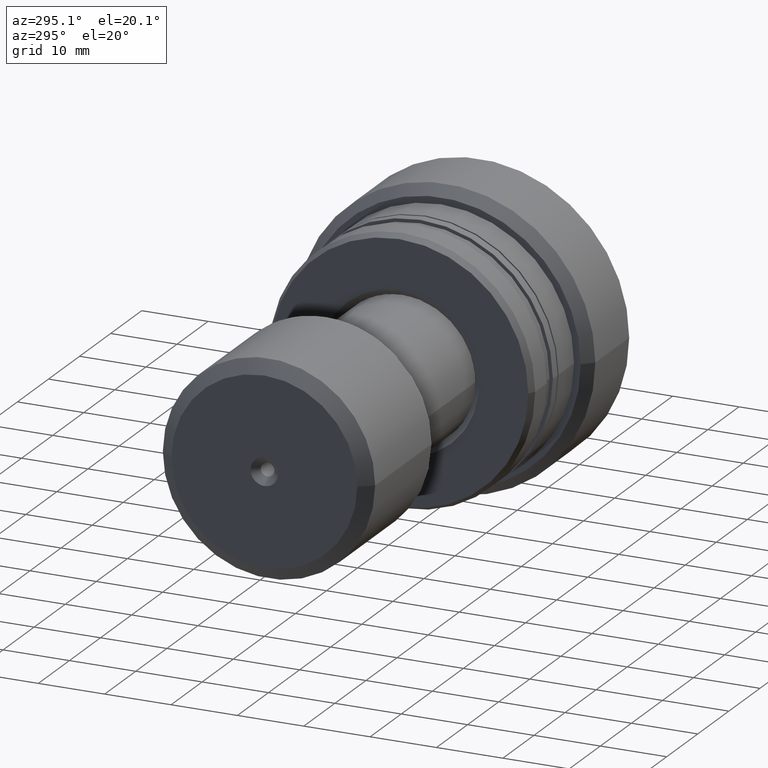
[diagram: clean part render]
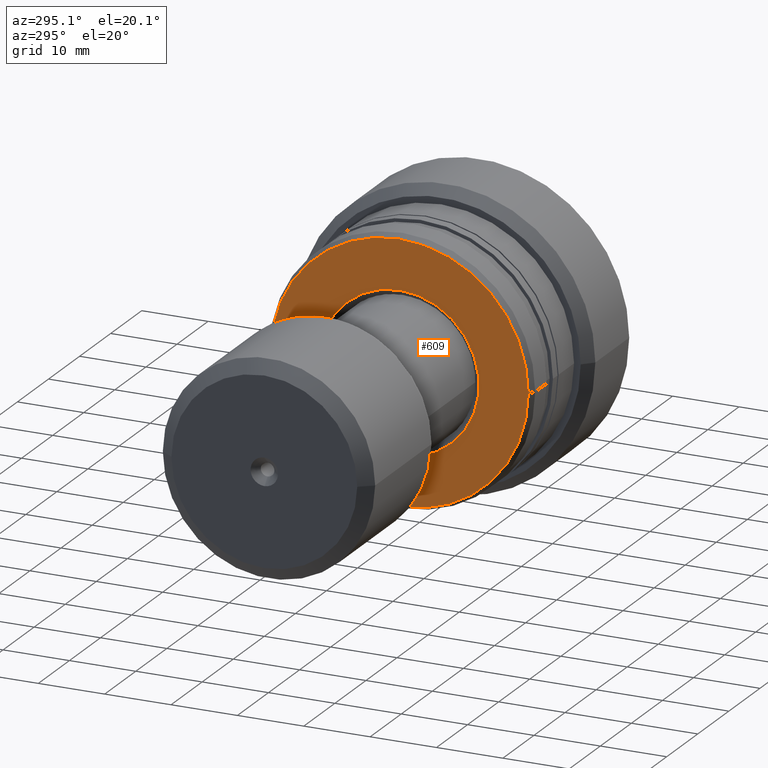
[diagram: same view with one face highlighted and labeled with its STEP entity id]
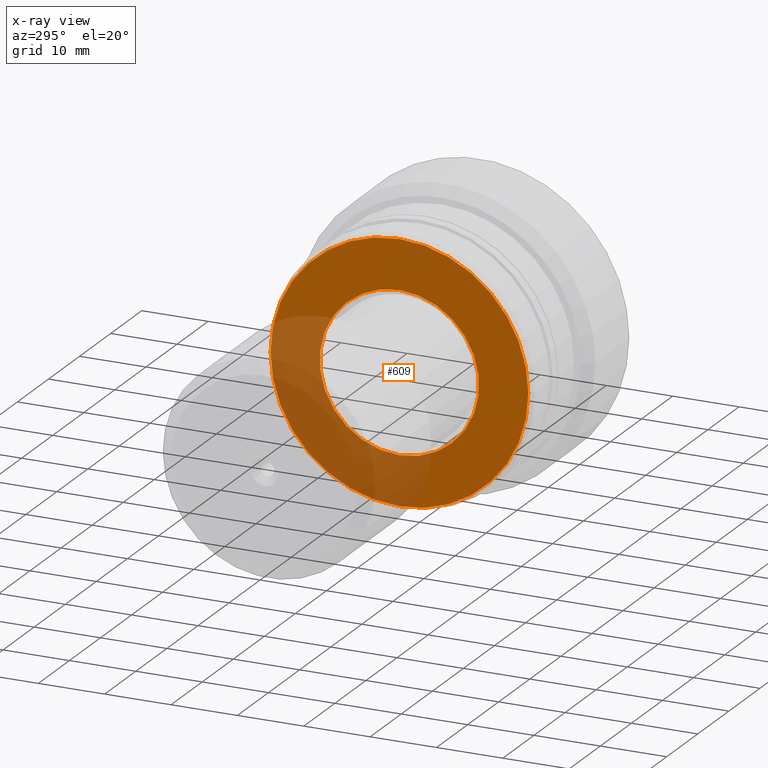
[diagram: x-ray of the same camera — body ghosted, the highlighted face saturated]
A machine part, auxiliary view. The second image highlights one B-rep face of the part: STEP entity #609.
The next image is the same camera in x-ray: the body ghosted, the highlighted face saturated — about 35% of this face is hidden behind the body in this view.
In plain terms, the highlighted planar face has unit normal (-1, 0, 0).
Its self-contained STEP definition (entity closure, byte-faithful):
#10 = DIRECTION ( 'NONE',  ( -1.000000000000000000, 1.333885945136072597E-15, -0.000000000000000000 ) ) ;
#15 = EDGE_CURVE ( 'NONE', #1863, #304, #1987, .T. ) ;
#72 = CARTESIAN_POINT ( 'NONE',  ( -27.49999999999998224, 0.000000000000000000, 11.99999999999998934 ) ) ;
#180 = CARTESIAN_POINT ( 'NONE',  ( -27.49999999999996803, -3.708233295962692034E-15, 0.000000000000000000 ) ) ;
#222 = CIRCLE ( 'NONE', #926, 19.42264973081047685 ) ;
#232 = AXIS2_PLACEMENT_3D ( 'NONE', #180, #10, #1695 ) ;
#304 = VERTEX_POINT ( 'NONE', #72 ) ;
#347 = DIRECTION ( 'NONE',  ( -1.000000000000000000, 1.333885945136072597E-15, -0.000000000000000000 ) ) ;
#363 = FACE_BOUND ( 'NONE', #2308, .T. ) ;
#372 = EDGE_LOOP ( 'NONE', ( #2208, #1947 ) ) ;
#407 = FACE_OUTER_BOUND ( 'NONE', #372, .T. ) ;
#417 = AXIS2_PLACEMENT_3D ( 'NONE', #1102, #1089, #2016 ) ;
#599 = EDGE_CURVE ( 'NONE', #304, #1863, #844, .T. ) ;
#609 = ADVANCED_FACE ( 'NONE', ( #363, #407 ), #907, .T. ) ;
#665 = ORIENTED_EDGE ( 'NONE', *, *, #599, .T. ) ;
#703 = DIRECTION ( 'NONE',  ( 1.000000000000000000, -1.333885945136072597E-15, 0.000000000000000000 ) ) ;
#704 = DIRECTION ( 'NONE',  ( -1.250402442523061283E-15, -1.000000000000000000, 0.000000000000000000 ) ) ;
#798 = CARTESIAN_POINT ( 'NONE',  ( -27.49999999999999289, -19.42264973081048041, 2.413941090337216083E-15 ) ) ;
#828 = VERTEX_POINT ( 'NONE', #798 ) ;
#844 = CIRCLE ( 'NONE', #417, 12.00000000000000533 ) ;
#896 = EDGE_CURVE ( 'NONE', #828, #1372, #222, .T. ) ;
#907 = PLANE ( 'NONE',  #1084 ) ;
#926 = AXIS2_PLACEMENT_3D ( 'NONE', #1632, #347, #704 ) ;
#970 = CARTESIAN_POINT ( 'NONE',  ( -27.49999999999998224, -3.708233295962674679E-15, 0.000000000000000000 ) ) ;
#1084 = AXIS2_PLACEMENT_3D ( 'NONE', #970, #1727, #1111 ) ;
#1089 = DIRECTION ( 'NONE',  ( 1.000000000000000000, -1.333885945136072597E-15, 0.000000000000000000 ) ) ;
#1102 = CARTESIAN_POINT ( 'NONE',  ( -27.49999999999998224, 0.000000000000000000, 0.000000000000000000 ) ) ;
#1111 = DIRECTION ( 'NONE',  ( -1.333885945136072597E-15, -1.000000000000000000, 0.000000000000000000 ) ) ;
#1292 = CIRCLE ( 'NONE', #232, 19.42264973081047685 ) ;
#1351 = ORIENTED_EDGE ( 'NONE', *, *, #15, .T. ) ;
#1363 = AXIS2_PLACEMENT_3D ( 'NONE', #1631, #703, #2382 ) ;
#1372 = VERTEX_POINT ( 'NONE', #1781 ) ;
#1546 = CARTESIAN_POINT ( 'NONE',  ( -27.49999999999998224, 1.469576158976822567E-15, -11.99999999999998934 ) ) ;
#1631 = CARTESIAN_POINT ( 'NONE',  ( -27.49999999999998224, 0.000000000000000000, 0.000000000000000000 ) ) ;
#1632 = CARTESIAN_POINT ( 'NONE',  ( -27.49999999999996803, -3.708233295962692034E-15, 0.000000000000000000 ) ) ;
#1695 = DIRECTION ( 'NONE',  ( -1.250402442523061283E-15, -1.000000000000000000, 0.000000000000000000 ) ) ;
#1727 = DIRECTION ( 'NONE',  ( -1.000000000000000000, 1.333885945136072597E-15, 0.000000000000000000 ) ) ;
#1781 = CARTESIAN_POINT ( 'NONE',  ( -27.49999999999994316, 19.42264973081047330, 0.000000000000000000 ) ) ;
#1863 = VERTEX_POINT ( 'NONE', #1546 ) ;
#1947 = ORIENTED_EDGE ( 'NONE', *, *, #896, .T. ) ;
#1987 = CIRCLE ( 'NONE', #1363, 12.00000000000000533 ) ;
#2016 = DIRECTION ( 'NONE',  ( -1.445602896647338522E-15, -1.000000000000000000, 0.000000000000000000 ) ) ;
#2103 = EDGE_CURVE ( 'NONE', #1372, #828, #1292, .T. ) ;
#2208 = ORIENTED_EDGE ( 'NONE', *, *, #2103, .T. ) ;
#2308 = EDGE_LOOP ( 'NONE', ( #665, #1351 ) ) ;
#2382 = DIRECTION ( 'NONE',  ( -1.445602896647338522E-15, -1.000000000000000000, 0.000000000000000000 ) ) ;